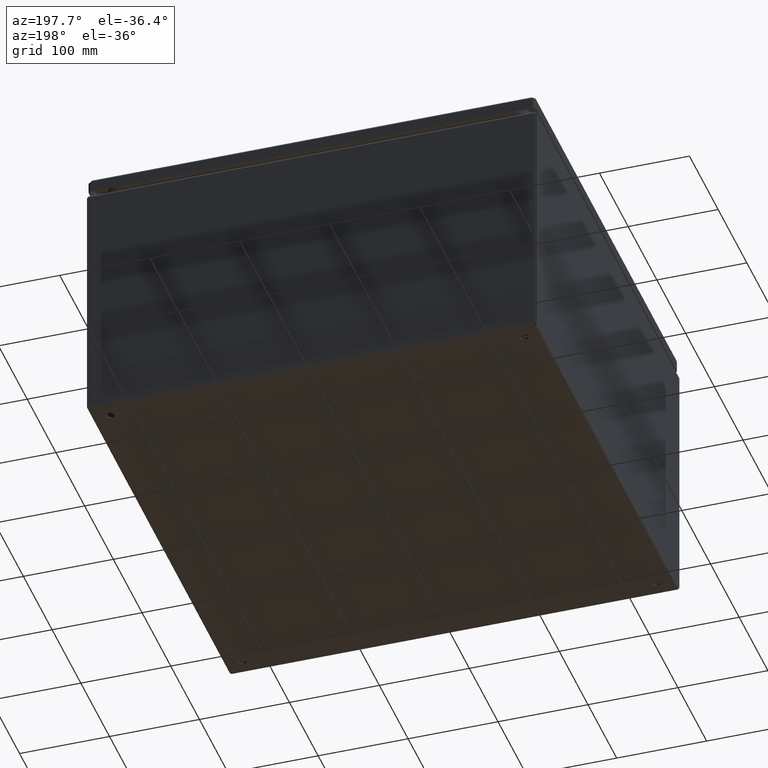
[diagram: clean part render]
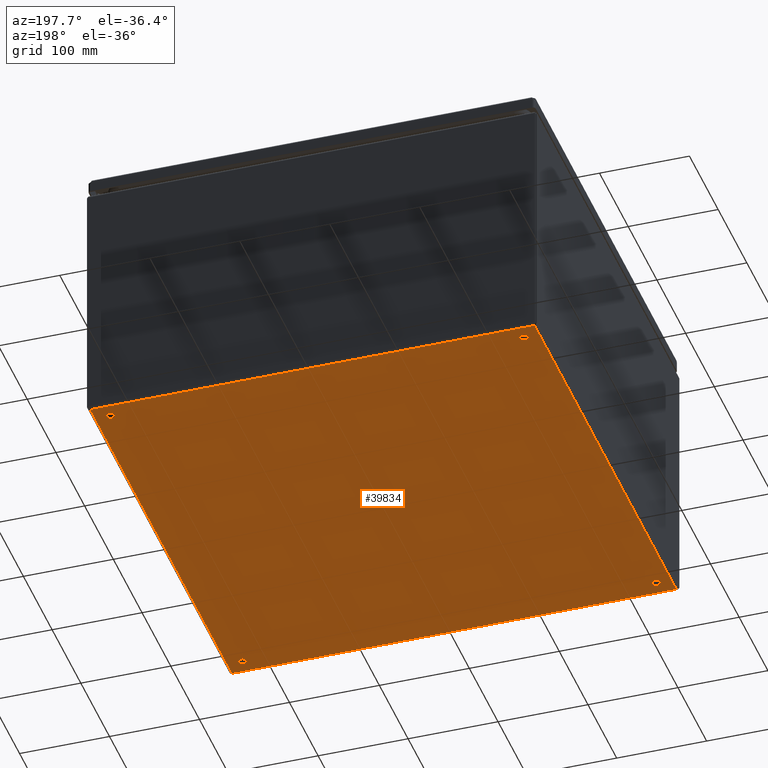
[diagram: same view with one face highlighted and labeled with its STEP entity id]
A machine part, auxiliary view. The second image highlights one B-rep face of the part: STEP entity #39834.
In plain terms, the highlighted planar face has unit normal (0, 0, 1).
Its self-contained STEP definition (entity closure, byte-faithful):
#22010 = DIRECTION ( 'NONE',  ( -1.000000000000000000, 0.0000000000000000000, 0.0000000000000000000 ) ) ;
#22011 = DIRECTION ( 'NONE',  ( 0.0000000000000000000, 0.0000000000000000000, -1.000000000000000000 ) ) ;
#22012 = CARTESIAN_POINT ( 'NONE',  ( -230.0000000000000900, -230.0000000000001400, 0.0000000000000000000 ) ) ;
#22013 = AXIS2_PLACEMENT_3D ( 'NONE', #22012, #22011, #22010 ) ;
#22014 = CIRCLE ( 'NONE', #22013, 4.500000000000032000 ) ;
#22015 = CARTESIAN_POINT ( 'NONE',  ( -225.5000000000000600, -230.0000000000001400, 0.0000000000000000000 ) ) ;
#22075 = CARTESIAN_POINT ( 'NONE',  ( -234.5000000000001100, -230.0000000000001400, 0.0000000000000000000 ) ) ;
#22099 = CARTESIAN_POINT ( 'NONE',  ( 225.4999999999999400, -230.0000000000002000, 0.0000000000000000000 ) ) ;
#22100 = DIRECTION ( 'NONE',  ( 1.000000000000000000, 0.0000000000000000000, 0.0000000000000000000 ) ) ;
#22101 = DIRECTION ( 'NONE',  ( 0.0000000000000000000, 0.0000000000000000000, -1.000000000000000000 ) ) ;
#22102 = CARTESIAN_POINT ( 'NONE',  ( 229.9999999999999700, -230.0000000000002000, 0.0000000000000000000 ) ) ;
#22103 = AXIS2_PLACEMENT_3D ( 'NONE', #22102, #22101, #22100 ) ;
#22104 = CIRCLE ( 'NONE', #22103, 4.500000000000032000 ) ;
#22105 = CARTESIAN_POINT ( 'NONE',  ( 234.5000000000000000, -230.0000000000002000, 0.0000000000000000000 ) ) ;
#22146 = CARTESIAN_POINT ( 'NONE',  ( 225.4999999999999400, 230.0000000000002000, 0.0000000000000000000 ) ) ;
#22147 = DIRECTION ( 'NONE',  ( -1.000000000000000000, 0.0000000000000000000, 0.0000000000000000000 ) ) ;
#22148 = DIRECTION ( 'NONE',  ( 0.0000000000000000000, 0.0000000000000000000, -1.000000000000000000 ) ) ;
#22149 = CARTESIAN_POINT ( 'NONE',  ( 229.9999999999999700, 230.0000000000002000, 0.0000000000000000000 ) ) ;
#22150 = AXIS2_PLACEMENT_3D ( 'NONE', #22149, #22148, #22147 ) ;
#22151 = CIRCLE ( 'NONE', #22150, 4.500000000000032000 ) ;
#22152 = CARTESIAN_POINT ( 'NONE',  ( 234.5000000000000000, 230.0000000000002000, 0.0000000000000000000 ) ) ;
#22175 = CARTESIAN_POINT ( 'NONE',  ( -234.5000000000000000, 230.0000000000002600, 0.0000000000000000000 ) ) ;
#22176 = DIRECTION ( 'NONE',  ( 1.000000000000000000, 0.0000000000000000000, 0.0000000000000000000 ) ) ;
#22177 = DIRECTION ( 'NONE',  ( 0.0000000000000000000, 0.0000000000000000000, -1.000000000000000000 ) ) ;
#22178 = CARTESIAN_POINT ( 'NONE',  ( -229.9999999999999700, 230.0000000000002600, 0.0000000000000000000 ) ) ;
#22179 = AXIS2_PLACEMENT_3D ( 'NONE', #22178, #22177, #22176 ) ;
#22180 = CIRCLE ( 'NONE', #22179, 4.500000000000032000 ) ;
#22181 = CARTESIAN_POINT ( 'NONE',  ( -225.4999999999999400, 230.0000000000002600, 0.0000000000000000000 ) ) ;
#22837 = DIRECTION ( 'NONE',  ( 1.000000000000000000, 0.0000000000000000000, 0.0000000000000000000 ) ) ;
#22838 = DIRECTION ( 'NONE',  ( 0.0000000000000000000, 0.0000000000000000000, -1.000000000000000000 ) ) ;
#22839 = CARTESIAN_POINT ( 'NONE',  ( 229.9999999999999700, -230.0000000000002000, 0.0000000000000000000 ) ) ;
#22840 = AXIS2_PLACEMENT_3D ( 'NONE', #22839, #22838, #22837 ) ;
#22841 = CIRCLE ( 'NONE', #22840, 4.500000000000032000 ) ;
#22842 = DIRECTION ( 'NONE',  ( 1.000000000000000000, 0.0000000000000000000, 0.0000000000000000000 ) ) ;
#22843 = DIRECTION ( 'NONE',  ( 0.0000000000000000000, 0.0000000000000000000, 1.000000000000000000 ) ) ;
#22845 = CARTESIAN_POINT ( 'NONE',  ( -248.4999999999998300, -248.4999999999999400, 0.0000000000000000000 ) ) ;
#22846 = AXIS2_PLACEMENT_3D ( 'NONE', #22845, #22843, #22842 ) ;
#22847 = PLANE ( 'NONE',  #22846 ) ;
#22848 = FACE_OUTER_BOUND ( 'NONE', #39970, .T. ) ;
#22849 = FACE_BOUND ( 'NONE', #39959, .T. ) ;
#22850 = FACE_BOUND ( 'NONE', #39952, .T. ) ;
#22851 = FACE_BOUND ( 'NONE', #39945, .T. ) ;
#22852 = FACE_BOUND ( 'NONE', #39835, .T. ) ;
#22884 = CARTESIAN_POINT ( 'NONE',  ( -247.0000000000001100, 246.9999999999746500, 1.301042606982605300E-015 ) ) ;
#22885 = DIRECTION ( 'NONE',  ( 3.216285744678248900E-016, -1.000000000000000000, 0.0000000000000000000 ) ) ;
#22886 = VECTOR ( 'NONE', #22885, 1000.000000000000000 ) ;
#22887 = CARTESIAN_POINT ( 'NONE',  ( -247.0000000000001100, 248.4999999999998600, 1.301042606982605300E-015 ) ) ;
#22888 = LINE ( 'NONE', #22887, #22886 ) ;
#22889 = CARTESIAN_POINT ( 'NONE',  ( -247.0000000000054900, -246.9999999999999700, 1.301042606982605300E-015 ) ) ;
#22890 = DIRECTION ( 'NONE',  ( 1.000000000000000000, -1.836909530733565900E-016, 0.0000000000000000000 ) ) ;
#22891 = VECTOR ( 'NONE', #22890, 1000.000000000000000 ) ;
#22892 = CARTESIAN_POINT ( 'NONE',  ( -248.5000000000000000, -247.0000000000000000, 1.301042606982605300E-015 ) ) ;
#22893 = LINE ( 'NONE', #22892, #22891 ) ;
#22894 = CARTESIAN_POINT ( 'NONE',  ( 246.9999999999948600, 247.0000000000000000, 1.301042606982605300E-015 ) ) ;
#22895 = CARTESIAN_POINT ( 'NONE',  ( 247.0000000000000300, -247.0000000000647200, 1.301042606982605300E-015 ) ) ;
#22896 = DIRECTION ( 'NONE',  ( 0.0000000000000000000, 1.000000000000000000, 0.0000000000000000000 ) ) ;
#22897 = VECTOR ( 'NONE', #22896, 1000.000000000000000 ) ;
#22898 = CARTESIAN_POINT ( 'NONE',  ( 247.0000000000000300, -2733.499999999999500, 1.301042606982605300E-015 ) ) ;
#22899 = LINE ( 'NONE', #22898, #22897 ) ;
#22924 = DIRECTION ( 'NONE',  ( -1.000000000000000000, 0.0000000000000000000, 0.0000000000000000000 ) ) ;
#22925 = DIRECTION ( 'NONE',  ( 0.0000000000000000000, 0.0000000000000000000, -1.000000000000000000 ) ) ;
#22926 = CARTESIAN_POINT ( 'NONE',  ( 229.9999999999999700, 230.0000000000002000, 0.0000000000000000000 ) ) ;
#22927 = AXIS2_PLACEMENT_3D ( 'NONE', #22926, #22925, #22924 ) ;
#22929 = CIRCLE ( 'NONE', #22927, 4.500000000000032000 ) ;
#22930 = DIRECTION ( 'NONE',  ( 1.000000000000000000, 0.0000000000000000000, 0.0000000000000000000 ) ) ;
#22931 = DIRECTION ( 'NONE',  ( 0.0000000000000000000, 0.0000000000000000000, -1.000000000000000000 ) ) ;
#22932 = CARTESIAN_POINT ( 'NONE',  ( -229.9999999999999700, 230.0000000000002600, 0.0000000000000000000 ) ) ;
#22933 = AXIS2_PLACEMENT_3D ( 'NONE', #22932, #22931, #22930 ) ;
#22934 = CIRCLE ( 'NONE', #22933, 4.500000000000032000 ) ;
#22935 = DIRECTION ( 'NONE',  ( -1.000000000000000000, 0.0000000000000000000, 0.0000000000000000000 ) ) ;
#22936 = DIRECTION ( 'NONE',  ( 0.0000000000000000000, 0.0000000000000000000, -1.000000000000000000 ) ) ;
#22937 = CARTESIAN_POINT ( 'NONE',  ( -230.0000000000000900, -230.0000000000001400, 0.0000000000000000000 ) ) ;
#22938 = AXIS2_PLACEMENT_3D ( 'NONE', #22937, #22936, #22935 ) ;
#22939 = CIRCLE ( 'NONE', #22938, 4.500000000000032000 ) ;
#22951 = DIRECTION ( 'NONE',  ( -1.000000000000000000, 6.123031769111886300E-017, 0.0000000000000000000 ) ) ;
#22952 = VECTOR ( 'NONE', #22951, 1000.000000000000000 ) ;
#22953 = CARTESIAN_POINT ( 'NONE',  ( 248.4999999999999700, 247.0000000000000300, 1.301042606982605300E-015 ) ) ;
#22954 = LINE ( 'NONE', #22953, #22952 ) ;
#38972 = VERTEX_POINT ( 'NONE', #22015 ) ;
#38977 = EDGE_CURVE ( 'NONE', #38972, #38980, #22014, .T. ) ;
#38980 = VERTEX_POINT ( 'NONE', #22075 ) ;
#39023 = VERTEX_POINT ( 'NONE', #22105 ) ;
#39026 = EDGE_CURVE ( 'NONE', #39023, #39029, #22104, .T. ) ;
#39029 = VERTEX_POINT ( 'NONE', #22099 ) ;
#39085 = VERTEX_POINT ( 'NONE', #22152 ) ;
#39088 = EDGE_CURVE ( 'NONE', #39085, #39089, #22151, .T. ) ;
#39089 = VERTEX_POINT ( 'NONE', #22146 ) ;
#39119 = VERTEX_POINT ( 'NONE', #22181 ) ;
#39124 = EDGE_CURVE ( 'NONE', #39119, #39125, #22180, .T. ) ;
#39125 = VERTEX_POINT ( 'NONE', #22175 ) ;
#39834 = ADVANCED_FACE ( 'NONE', ( #22852, #22851, #22850, #22849, #22848 ), #22847, .F. ) ;
#39835 = EDGE_LOOP ( 'NONE', ( #39837, #39841 ) ) ;
#39837 = ORIENTED_EDGE ( 'NONE', *, *, #39839, .F. ) ;
#39839 = EDGE_CURVE ( 'NONE', #39029, #39023, #22841, .T. ) ;
#39841 = ORIENTED_EDGE ( 'NONE', *, *, #39026, .F. ) ;
#39912 = ORIENTED_EDGE ( 'NONE', *, *, #39914, .F. ) ;
#39914 = EDGE_CURVE ( 'NONE', #39917, #39919, #22899, .T. ) ;
#39917 = VERTEX_POINT ( 'NONE', #22895 ) ;
#39919 = VERTEX_POINT ( 'NONE', #22894 ) ;
#39922 = ORIENTED_EDGE ( 'NONE', *, *, #39924, .F. ) ;
#39924 = EDGE_CURVE ( 'NONE', #39925, #39917, #22893, .T. ) ;
#39925 = VERTEX_POINT ( 'NONE', #22889 ) ;
#39926 = ORIENTED_EDGE ( 'NONE', *, *, #39928, .F. ) ;
#39928 = EDGE_CURVE ( 'NONE', #39931, #39925, #22888, .T. ) ;
#39931 = VERTEX_POINT ( 'NONE', #22884 ) ;
#39933 = ORIENTED_EDGE ( 'NONE', *, *, #39936, .F. ) ;
#39936 = EDGE_CURVE ( 'NONE', #39919, #39931, #22954, .T. ) ;
#39945 = EDGE_LOOP ( 'NONE', ( #39946, #39950 ) ) ;
#39946 = ORIENTED_EDGE ( 'NONE', *, *, #39948, .F. ) ;
#39948 = EDGE_CURVE ( 'NONE', #38980, #38972, #22939, .T. ) ;
#39950 = ORIENTED_EDGE ( 'NONE', *, *, #38977, .F. ) ;
#39952 = EDGE_LOOP ( 'NONE', ( #39953, #39958 ) ) ;
#39953 = ORIENTED_EDGE ( 'NONE', *, *, #39955, .F. ) ;
#39955 = EDGE_CURVE ( 'NONE', #39125, #39119, #22934, .T. ) ;
#39958 = ORIENTED_EDGE ( 'NONE', *, *, #39124, .F. ) ;
#39959 = EDGE_LOOP ( 'NONE', ( #39961, #39966 ) ) ;
#39961 = ORIENTED_EDGE ( 'NONE', *, *, #39963, .F. ) ;
#39963 = EDGE_CURVE ( 'NONE', #39089, #39085, #22929, .T. ) ;
#39966 = ORIENTED_EDGE ( 'NONE', *, *, #39088, .F. ) ;
#39970 = EDGE_LOOP ( 'NONE', ( #39912, #39922, #39926, #39933 ) ) ;